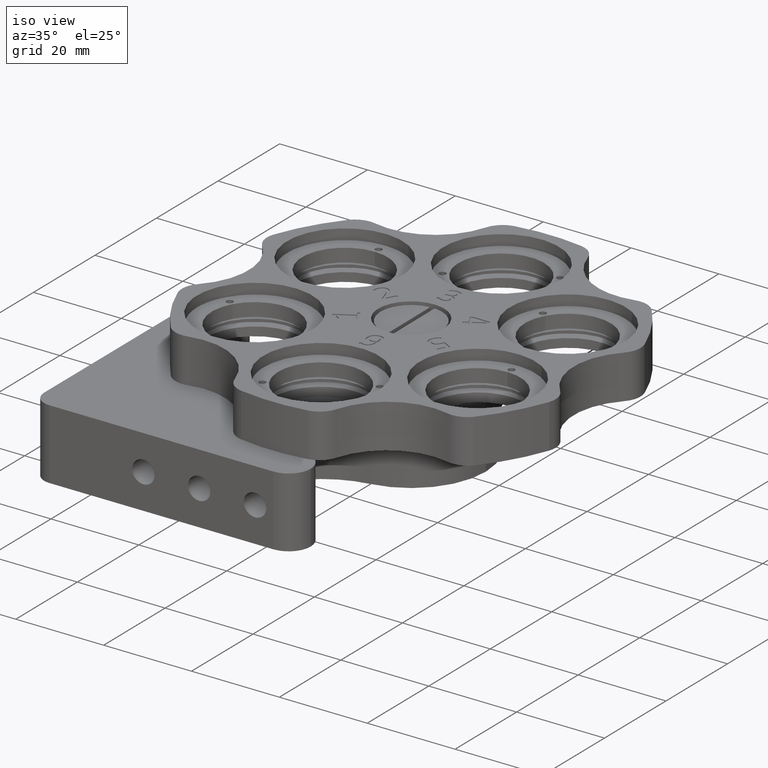
[diagram: clean part render]
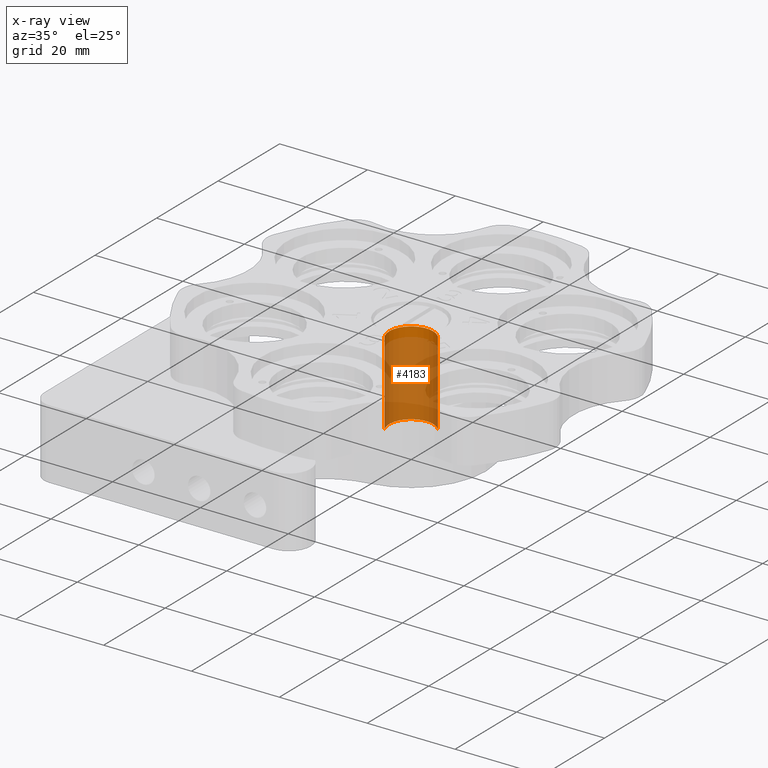
[diagram: x-ray — body ghosted, one internal face saturated and labeled with its STEP entity id]
A machine part, iso view, then the same camera in x-ray: the body is ghosted and one INTERNAL B-rep face — a face not visible from any outside direction — is saturated and labeled: STEP entity #4183.
In plain terms, the highlighted cylindrical surface (edge-blend (fillet) strip) has radius 5 mm, axis along (-0, -0, -1).
Its self-contained STEP definition (entity closure, byte-faithful):
#240 = AXIS2_PLACEMENT_3D ( 'NONE', #11939, #3561, #2312 ) ;
#573 = VECTOR ( 'NONE', #1510, 1000.000000000000000 ) ;
#1017 = EDGE_LOOP ( 'NONE', ( #2101, #11823, #10856, #3418 ) ) ;
#1292 = CIRCLE ( 'NONE', #240, 5.000000000000000000 ) ;
#1510 = DIRECTION ( 'NONE',  ( -1.382153697166223000E-031, -1.224606353822366900E-016, -1.000000000000000000 ) ) ;
#2101 = ORIENTED_EDGE ( 'NONE', *, *, #15373, .F. ) ;
#2312 = DIRECTION ( 'NONE',  ( 0.7427010864063201500, 0.6696231001472929800, 0.0000000000000000000 ) ) ;
#2502 = EDGE_CURVE ( 'NONE', #8871, #4816, #3782, .T. ) ;
#2779 = CARTESIAN_POINT ( 'NONE',  ( -3.713505432031244600, -3.348115500736815500, 6.999999999999999100 ) ) ;
#2803 = CIRCLE ( 'NONE', #7515, 5.000000000000000000 ) ;
#2919 = VERTEX_POINT ( 'NONE', #7832 ) ;
#3418 = ORIENTED_EDGE ( 'NONE', *, *, #2502, .F. ) ;
#3561 = DIRECTION ( 'NONE',  ( 1.382153697166223000E-031, 1.224606353822366900E-016, 1.000000000000000000 ) ) ;
#3782 = LINE ( 'NONE', #2779, #573 ) ;
#4171 = CARTESIAN_POINT ( 'NONE',  ( 3.713505432031956500, 3.348115500736115200, -12.10000000000000300 ) ) ;
#4183 = ADVANCED_FACE ( 'NONE', ( #5910 ), #5543, .T. ) ;
#4397 = DIRECTION ( 'NONE',  ( -1.382153697166223000E-031, -1.224606353822366900E-016, -1.000000000000000000 ) ) ;
#4816 = VERTEX_POINT ( 'NONE', #9170 ) ;
#5543 = CYLINDRICAL_SURFACE ( 'NONE', #15291, 5.000000000000000000 ) ;
#5694 = DIRECTION ( 'NONE',  ( -0.7427010864063201500, -0.6696231001472929800, 0.0000000000000000000 ) ) ;
#5910 = FACE_OUTER_BOUND ( 'NONE', #1017, .T. ) ;
#5946 = DIRECTION ( 'NONE',  ( -1.382153697166223000E-031, -1.224606353822366900E-016, -1.000000000000000000 ) ) ;
#6684 = CARTESIAN_POINT ( 'NONE',  ( -3.713505432031245500, -3.348115500736816900, 6.999999999999999100 ) ) ;
#7305 = DIRECTION ( 'NONE',  ( 0.7427010864063201500, 0.6696231001472929800, 0.0000000000000000000 ) ) ;
#7515 = AXIS2_PLACEMENT_3D ( 'NONE', #12100, #10878, #7305 ) ;
#7832 = CARTESIAN_POINT ( 'NONE',  ( 3.713505432031958300, 3.348115500736116500, 6.999999999999999100 ) ) ;
#8871 = VERTEX_POINT ( 'NONE', #6684 ) ;
#9170 = CARTESIAN_POINT ( 'NONE',  ( -3.713505432031246400, -3.348115500736817300, -12.10000000000000300 ) ) ;
#9483 = CARTESIAN_POINT ( 'NONE',  ( 3.713505432031956500, 3.348115500736116100, 6.999999999999999100 ) ) ;
#10454 = CARTESIAN_POINT ( 'NONE',  ( 3.561527595719349500E-013, -3.500235253705617900E-013, 6.999999999999999100 ) ) ;
#10856 = ORIENTED_EDGE ( 'NONE', *, *, #15447, .T. ) ;
#10878 = DIRECTION ( 'NONE',  ( 1.382153697166223000E-031, 1.224606353822366900E-016, 1.000000000000000000 ) ) ;
#11583 = EDGE_CURVE ( 'NONE', #2919, #15284, #11931, .T. ) ;
#11823 = ORIENTED_EDGE ( 'NONE', *, *, #11583, .T. ) ;
#11931 = LINE ( 'NONE', #9483, #14764 ) ;
#11939 = CARTESIAN_POINT ( 'NONE',  ( 3.561527595719350500E-013, -3.523625235063626000E-013, -12.10000000000000300 ) ) ;
#12100 = CARTESIAN_POINT ( 'NONE',  ( 3.561527595719349500E-013, -3.500235253705617900E-013, 6.999999999999999100 ) ) ;
#14764 = VECTOR ( 'NONE', #5946, 1000.000000000000000 ) ;
#15284 = VERTEX_POINT ( 'NONE', #4171 ) ;
#15291 = AXIS2_PLACEMENT_3D ( 'NONE', #10454, #4397, #5694 ) ;
#15373 = EDGE_CURVE ( 'NONE', #2919, #8871, #2803, .T. ) ;
#15447 = EDGE_CURVE ( 'NONE', #15284, #4816, #1292, .T. ) ;